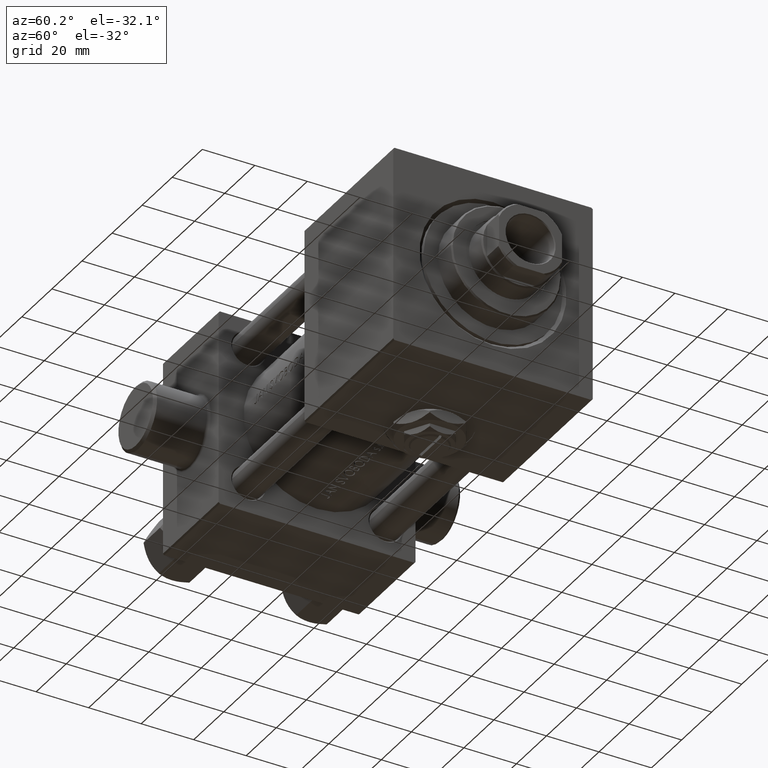
[diagram: clean part render]
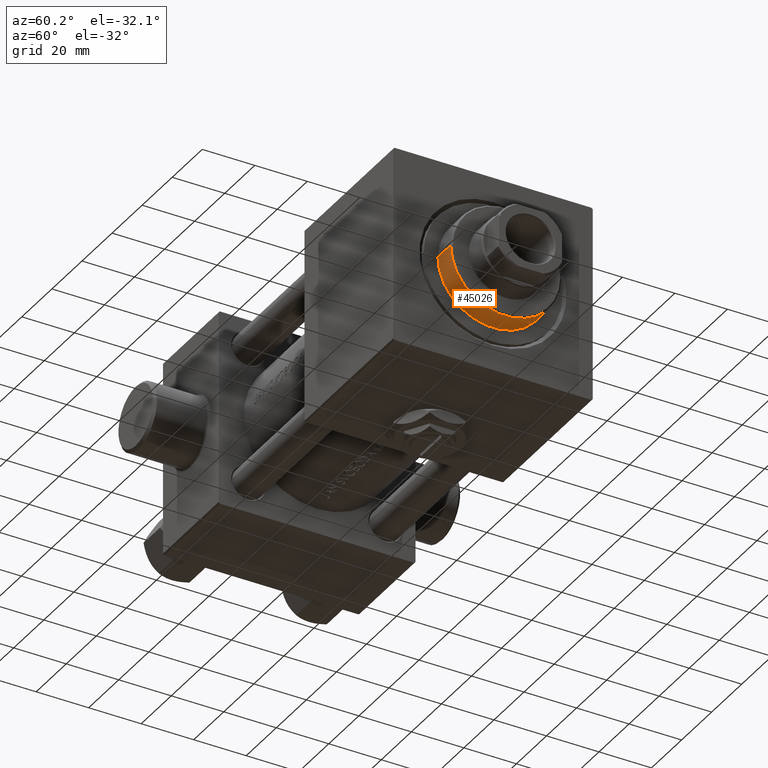
[diagram: same view with one face highlighted and labeled with its STEP entity id]
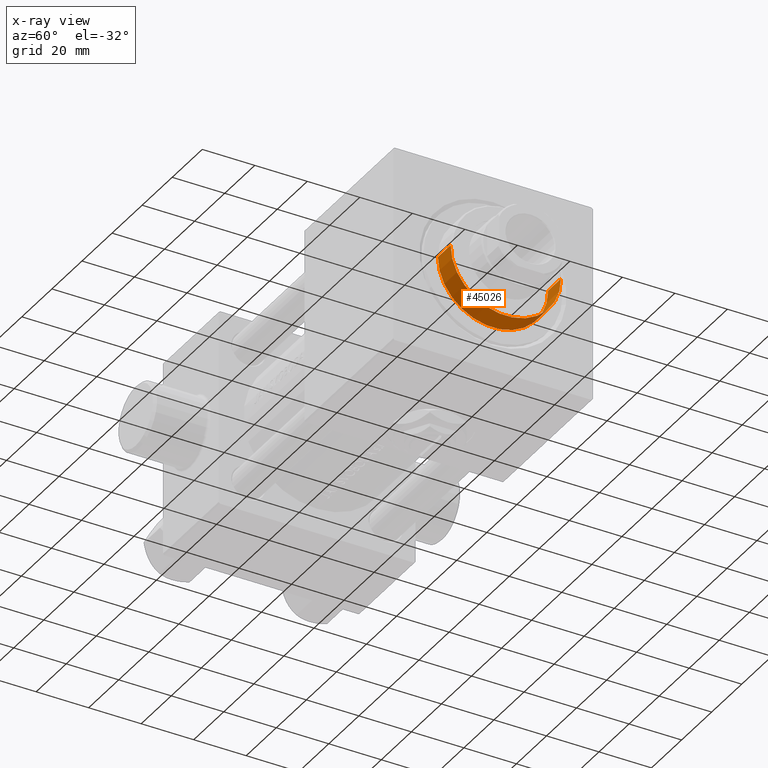
[diagram: x-ray of the same camera — body ghosted, the highlighted face saturated]
A machine part, auxiliary view. The second image highlights one B-rep face of the part: STEP entity #45026.
The next image is the same camera in x-ray: the body ghosted, the highlighted face saturated — about 0% of this face is hidden behind the body in this view.
In plain terms, the highlighted cylindrical surface (partial cylindrical patch) has radius 21 mm, axis along (-1, 0, 0).
Its self-contained STEP definition (entity closure, byte-faithful):
#1313 = CARTESIAN_POINT ( 'NONE',  ( 21.00000000000000000, 2.571758278209441661E-15, 35.20000000000002416 ) ) ;
#1870 = CARTESIAN_POINT ( 'NONE',  ( 0.000000000000000000, 0.000000000000000000, 35.69999999999999574 ) ) ;
#2113 = VERTEX_POINT ( 'NONE', #1313 ) ;
#3528 = CARTESIAN_POINT ( 'NONE',  ( -21.00000000000000000, 0.000000000000000000, 26.69999999999999929 ) ) ;
#8745 = DIRECTION ( 'NONE',  ( -0.000000000000000000, -0.000000000000000000, -1.000000000000000000 ) ) ;
#10301 = VECTOR ( 'NONE', #42676, 1000.000000000000000 ) ;
#10968 = EDGE_CURVE ( 'NONE', #2113, #30301, #38093, .T. ) ;
#11744 = DIRECTION ( 'NONE',  ( 1.000000000000000000, 0.000000000000000000, 0.000000000000000000 ) ) ;
#11897 = CARTESIAN_POINT ( 'NONE',  ( -21.00000000000000000, 0.000000000000000000, 35.20000000000002416 ) ) ;
#12177 = EDGE_LOOP ( 'NONE', ( #27299, #41112, #38648, #23362 ) ) ;
#13462 = CIRCLE ( 'NONE', #16595, 21.00000000000000000 ) ;
#14058 = DIRECTION ( 'NONE',  ( 0.000000000000000000, 0.000000000000000000, -1.000000000000000000 ) ) ;
#15180 = CARTESIAN_POINT ( 'NONE',  ( 0.000000000000000000, 0.000000000000000000, 26.69999999999999929 ) ) ;
#15229 = CIRCLE ( 'NONE', #39493, 21.00000000000000000 ) ;
#16595 = AXIS2_PLACEMENT_3D ( 'NONE', #15180, #45346, #11744 ) ;
#16814 = DIRECTION ( 'NONE',  ( -1.000000000000000000, 0.000000000000000000, 0.000000000000000000 ) ) ;
#17000 = CARTESIAN_POINT ( 'NONE',  ( 0.000000000000000000, 0.000000000000000000, 35.20000000000002416 ) ) ;
#19305 = EDGE_CURVE ( 'NONE', #32258, #47093, #35548, .T. ) ;
#20488 = EDGE_CURVE ( 'NONE', #30301, #47093, #13462, .T. ) ;
#21150 = DIRECTION ( 'NONE',  ( 1.000000000000000000, 0.000000000000000000, 0.000000000000000000 ) ) ;
#23362 = ORIENTED_EDGE ( 'NONE', *, *, #19305, .F. ) ;
#23596 = CARTESIAN_POINT ( 'NONE',  ( 21.00000000000000000, 2.571758278209441661E-15, 35.69999999999999574 ) ) ;
#24812 = CARTESIAN_POINT ( 'NONE',  ( 21.00000000000000000, 2.571758278209441661E-15, 26.69999999999999929 ) ) ;
#27299 = ORIENTED_EDGE ( 'NONE', *, *, #31114, .T. ) ;
#27361 = FACE_OUTER_BOUND ( 'NONE', #12177, .T. ) ;
#27689 = CARTESIAN_POINT ( 'NONE',  ( -21.00000000000000000, 0.000000000000000000, 35.69999999999999574 ) ) ;
#28918 = VECTOR ( 'NONE', #38578, 1000.000000000000000 ) ;
#30301 = VERTEX_POINT ( 'NONE', #24812 ) ;
#31114 = EDGE_CURVE ( 'NONE', #32258, #2113, #15229, .T. ) ;
#32258 = VERTEX_POINT ( 'NONE', #11897 ) ;
#33518 = AXIS2_PLACEMENT_3D ( 'NONE', #1870, #8745, #16814 ) ;
#35548 = LINE ( 'NONE', #27689, #10301 ) ;
#38093 = LINE ( 'NONE', #23596, #28918 ) ;
#38578 = DIRECTION ( 'NONE',  ( -0.000000000000000000, -0.000000000000000000, -1.000000000000000000 ) ) ;
#38648 = ORIENTED_EDGE ( 'NONE', *, *, #20488, .T. ) ;
#39493 = AXIS2_PLACEMENT_3D ( 'NONE', #17000, #14058, #21150 ) ;
#41112 = ORIENTED_EDGE ( 'NONE', *, *, #10968, .T. ) ;
#42349 = CYLINDRICAL_SURFACE ( 'NONE', #33518, 21.00000000000000000 ) ;
#42676 = DIRECTION ( 'NONE',  ( -0.000000000000000000, -0.000000000000000000, -1.000000000000000000 ) ) ;
#45026 = ADVANCED_FACE ( 'NONE', ( #27361 ), #42349, .T. ) ;
#45346 = DIRECTION ( 'NONE',  ( 0.000000000000000000, 0.000000000000000000, 1.000000000000000000 ) ) ;
#47093 = VERTEX_POINT ( 'NONE', #3528 ) ;